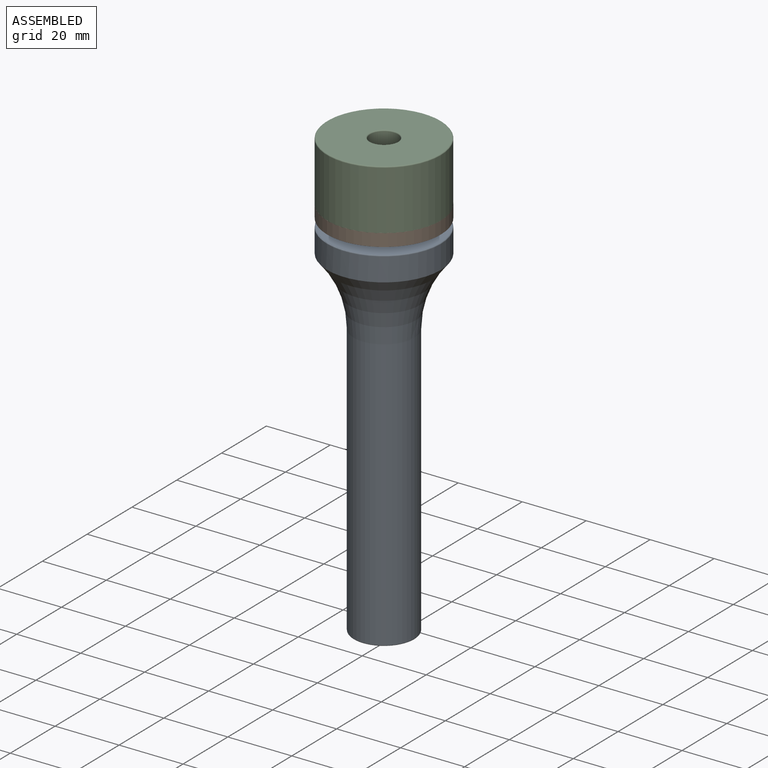
[diagram: assembled view]
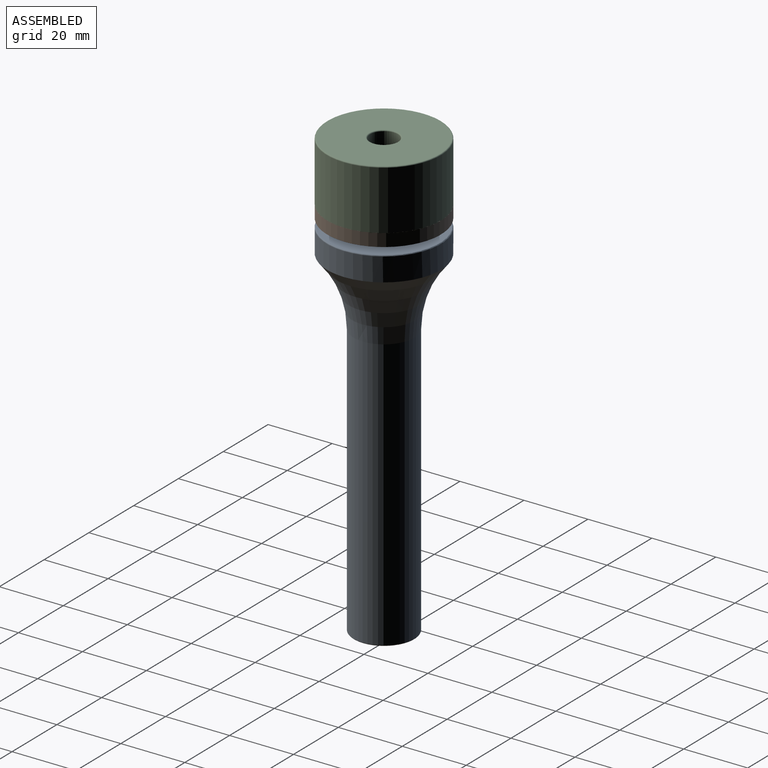
[diagram: assembled view, second angle]
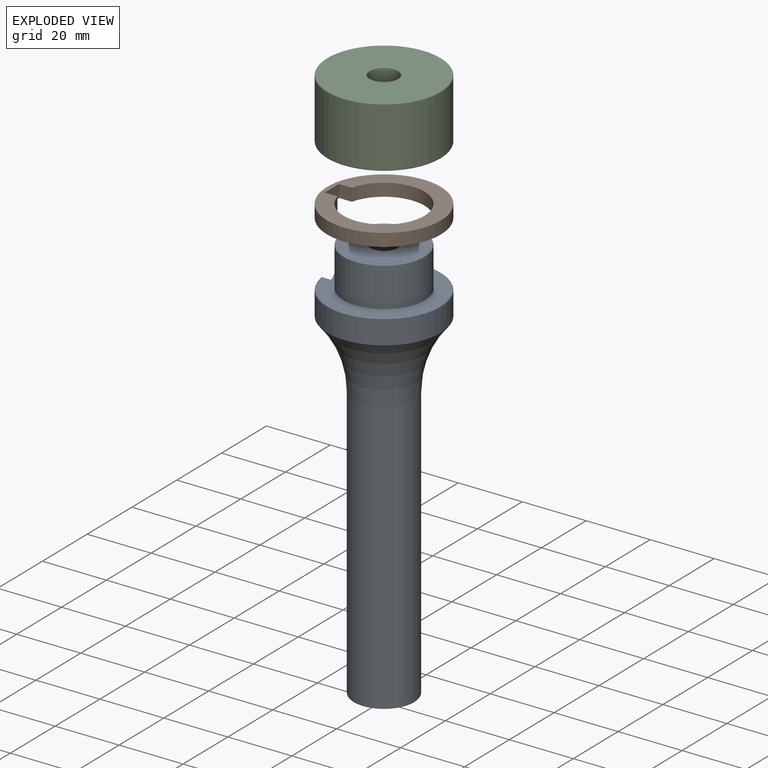
[diagram: exploded view]
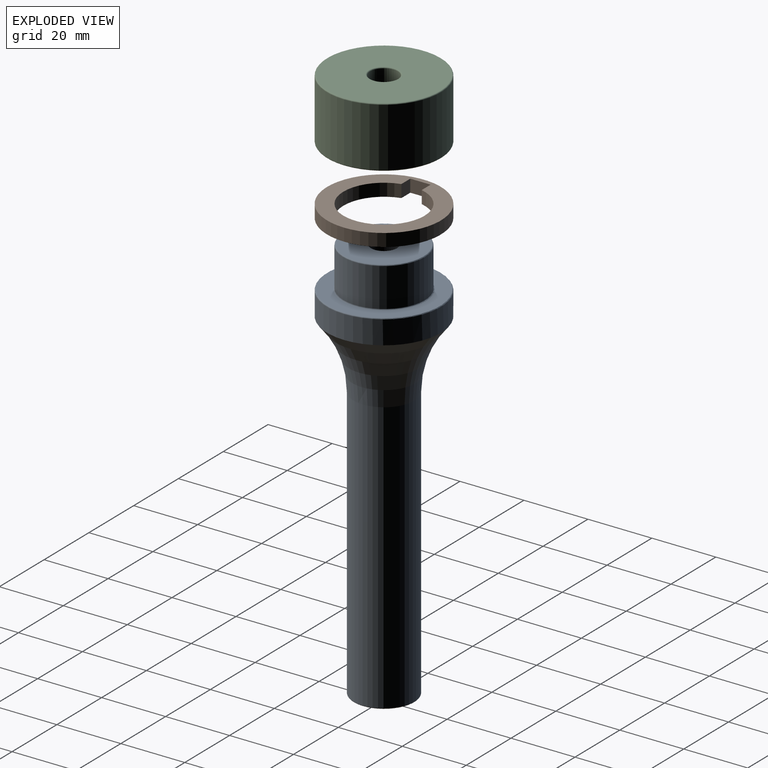
[diagram: exploded view, second angle]
ASSEMBLY  parts=3 mates=2
PART A: 18 faces, bbox 40.6x40.6x127 mm
  f0: plane 34.93x34.63mm, normal (0,0,1), area 397.2mm2, adj f2,f5,f17
  f1: cylinder r=17.78mm len=35.56mm, axis (0,0,1), area 801.9mm2, adj f2,f8,f17
  f2: torus R=17.46mm, axis (0,0,1), area 52.2mm2, adj f0,f1,f17
  f3: plane 24.77x24.35mm, normal (0,0,1), area 406.7mm2, adj f11,f12,f14,f15,f16
  f4: cylinder r=12.7mm len=25.4mm, axis (0,0,-1), area 885.3mm2, adj f5,f12,f14,f15
  f5: torus R=13.02mm, axis (0,0,1), area 37mm2, adj f0,f4,f14,f15
  f6: cylinder r=9.53mm len=85.01mm, axis (0,0,1), area 5087.5mm2, adj f8,f13
  f7: plane 18.42x18.42mm, normal (0,0,-1), area 266.3mm2, adj f13
  f8: torus R=41.27mm, axis (0,0,1), area 1814.2mm2, adj f1,f6
  f9: cylinder r=3.97mm len=31.43mm, axis (0,0,1), area 783.8mm2, adj f10,f11
  f10: plane 7.94x7.94mm, normal (0,0,1), area 49.5mm2, adj f9
  f11: torus R=4.29mm, axis (0,0,1), area 12.8mm2, adj f3,f9
  f12: torus R=12.38mm, axis (0,0,1), area 36.2mm2, adj f3,f4,f14,f15
  f13: torus R=9.21mm, axis (0,0,1), area 29.5mm2, adj f6,f7
  f14: plane 12.74x3.14mm, normal (0,1,0), area 35.2mm2, adj f3,f4,f5,f12,f16,f17
  f15: plane 12.74x3.14mm, normal (0,-1,0), area 35.2mm2, adj f3,f4,f5,f12,f16,f17
  f16: plane 15.88x6.35mm, normal (-1,0,0), area 96.5mm2, adj f3,f14,f15,f17
  f17: cylinder r=3.17mm len=8.26mm, axis (1,0,0), area 80.9mm2, adj f0,f1,f2,f14,f15,f16
PART B: 7 faces, bbox 35.6x35.6x4 mm
  f0: plane 3.98x3.96mm, normal (0,-1,0), area 15.8mm2, adj f1,f3,f5,f6
  f1: cylinder r=12.7mm len=25.4mm, axis (0,0,-1), area 290.8mm2, adj f0,f2,f5,f6
  f2: plane 3.98x3.96mm, normal (0,1,0), area 15.8mm2, adj f1,f3,f5,f6
  f3: plane 6.35x3.96mm, normal (1,0,0), area 25.2mm2, adj f0,f2,f5,f6
  f4: cylinder r=17.78mm len=35.56mm, axis (0,0,-1), area 442.7mm2, adj f5,f6
  f5: plane 35.56x35.56mm, normal (0,0,1), area 462.8mm2, adj f0,f1,f2,f3,f4
  f6: plane 35.56x35.56mm, normal (0,0,-1), area 462.8mm2, adj f0,f1,f2,f3,f4
PART C: 12 faces, bbox 38.5x38.5x19.1 mm
  f0: cylinder r=12.7mm len=25.4mm, axis (0,0,1), area 1013.4mm2, adj f5,f11
  f1: cylinder r=17.78mm len=35.56mm, axis (0,0,1), area 2057.2mm2, adj f4,f6
  f2: plane 34.93x34.93mm, normal (0,0,-1), area 425.6mm2, adj f5,f6
  f3: plane 34.93x34.93mm, normal (0,0,1), area 889.1mm2, adj f4,f9
  f4: torus R=17.46mm, axis (0,0,1), area 55.4mm2, adj f1,f3
  f5: torus R=13.02mm, axis (0,0,1), area 40.2mm2, adj f0,f2
  f6: torus R=17.46mm, axis (0,0,1), area 55.4mm2, adj f1,f2
  f7: cylinder r=4.37mm len=8.73mm, axis (0,0,1), area 156.8mm2, adj f9,f10
  f8: plane 24.77x24.77mm, normal (0,0,-1), area 412.8mm2, adj f10,f11
  f9: torus R=4.68mm, axis (0,0,1), area 14mm2, adj f3,f7
  f10: torus R=4.68mm, axis (0,0,1), area 14mm2, adj f7,f8
  f11: torus R=12.38mm, axis (0,0,1), area 39.4mm2, adj f0,f8
PLACE A t=(20.42,-19.41,4)mm
PLACE B rot(axis=(1,0,0),180deg) t=(20.42,-19.41,10.35)mm
PLACE C t=(20.42,-19.41,29.08)mm
MATE revolute C.f0 <-> B.f1  axis (0,0,1) through (20.42,-19.41,10.35)mm
MATE revolute B.f1 <-> A.f1  axis (0,0,1) through (20.42,-19.41,10.35)mm
